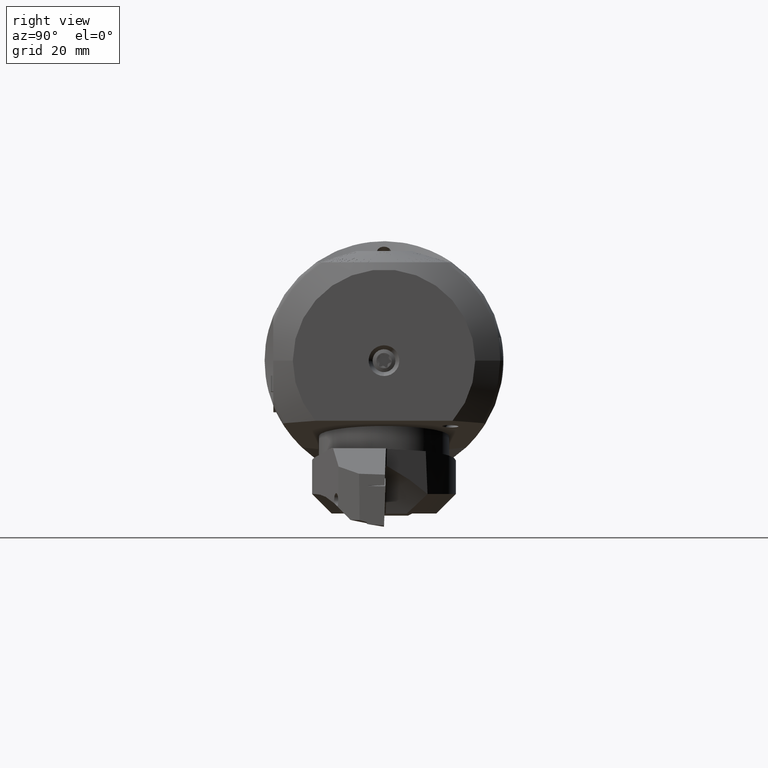
[diagram: clean part render]
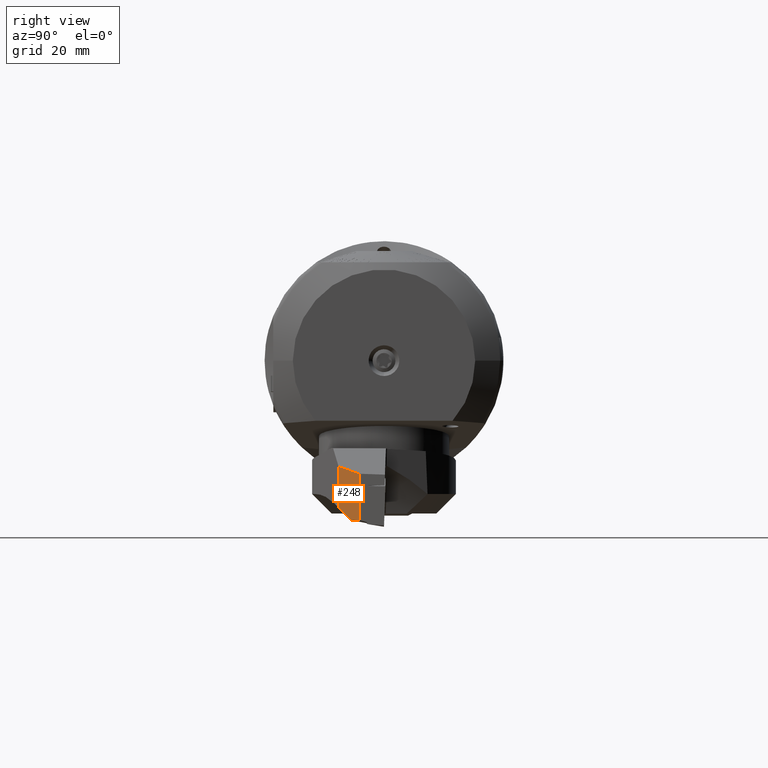
[diagram: same view with one face highlighted and labeled with its STEP entity id]
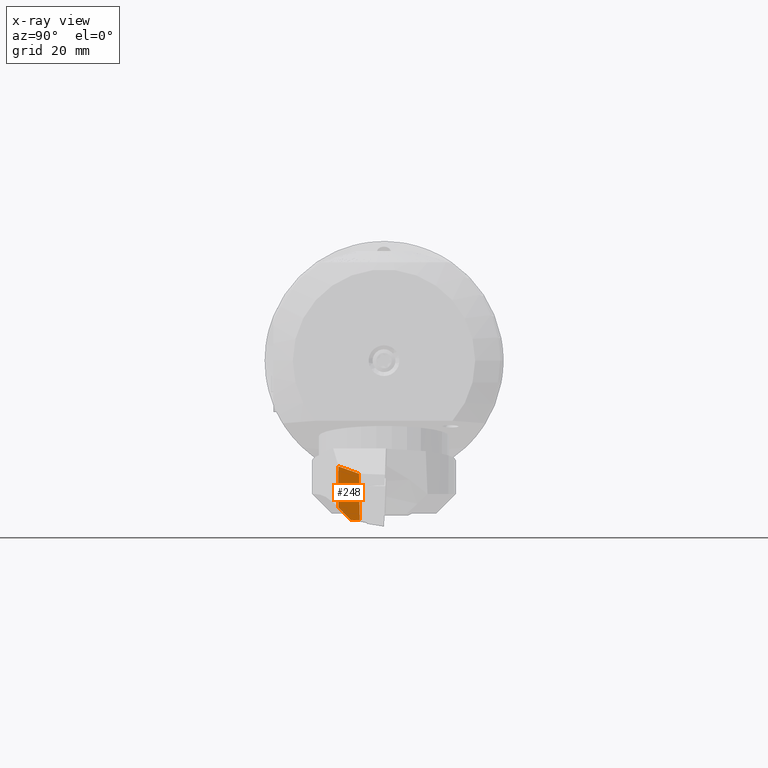
[diagram: x-ray of the same camera — body ghosted, the highlighted face saturated]
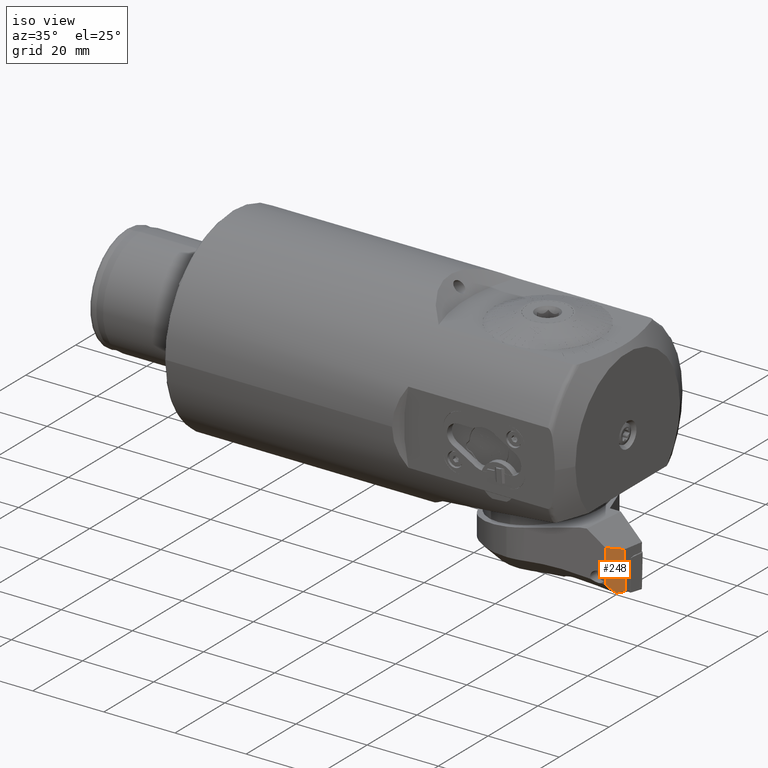
[diagram: same view with one face highlighted and labeled with its STEP entity id]
A machine part, right view. The second image highlights one B-rep face of the part: STEP entity #248.
The next image is the same camera in x-ray: the body ghosted, the highlighted face saturated — about 0% of this face is hidden behind the body in this view.
A second angle (iso view) of the same face is appended — the face is thin or edge-on in the first view.
In plain terms, the highlighted planar face has unit normal (-0.9138, 0.4062, 0).
Its self-contained STEP definition (entity closure, byte-faithful):
#248 = ADVANCED_FACE ( 'NONE', ( #35068 ), #19821, .F. ) ;
#584 = CARTESIAN_POINT ( 'NONE',  ( -9.603907633448271100, 23.95574967250997700, -9.543223649561383600 ) ) ;
#1660 = B_SPLINE_CURVE_WITH_KNOTS ( 'NONE', 3,
 ( #21396, #584, #24526, #6575 ),
 .UNSPECIFIED., .F., .F.,
 ( 4, 4 ),
 ( 0.004623077013931116400, 0.008754649610512706100 ),
 .UNSPECIFIED. ) ;
#1903 = ORIENTED_EDGE ( 'NONE', *, *, #37409, .T. ) ;
#3584 = CARTESIAN_POINT ( 'NONE',  ( 0.8221887790879622800, 23.54585331897428100, -10.46529087054007900 ) ) ;
#3947 = CARTESIAN_POINT ( 'NONE',  ( -12.99999999999999800, 23.54585331897426700, -10.46529087054007900 ) ) ;
#6033 = LINE ( 'NONE', #15322, #29086 ) ;
#6575 = CARTESIAN_POINT ( 'NONE',  ( -11.48350536810327500, 24.77361780301224700, -7.703418567827255500 ) ) ;
#6605 = VERTEX_POINT ( 'NONE', #38492 ) ;
#6722 = EDGE_CURVE ( 'NONE', #18833, #6605, #6033, .T. ) ;
#8013 = AXIS2_PLACEMENT_3D ( 'NONE', #37270, #38604, #29013 ) ;
#8690 = VECTOR ( 'NONE', #30826, 1000.000000000000000 ) ;
#9914 = EDGE_LOOP ( 'NONE', ( #17450, #16869, #32334, #24781, #1903 ) ) ;
#11503 = EDGE_CURVE ( 'NONE', #28052, #18833, #19328, .T. ) ;
#12299 = DIRECTION ( 'NONE',  ( 0.01160003500032031300, -0.4061845368102482400, -0.9137174405932259000 ) ) ;
#15019 = EDGE_CURVE ( 'NONE', #38915, #28052, #21032, .T. ) ;
#15322 = CARTESIAN_POINT ( 'NONE',  ( -11.40919090369141400, 22.17143717988468800, -13.55705799387994800 ) ) ;
#16690 = LINE ( 'NONE', #3947, #8690 ) ;
#16869 = ORIENTED_EDGE ( 'NONE', *, *, #11503, .F. ) ;
#17318 = DIRECTION ( 'NONE',  ( -0.9998938575726941100, 0.005918349228319508100, 0.01331340417807005100 ) ) ;
#17450 = ORIENTED_EDGE ( 'NONE', *, *, #6722, .F. ) ;
#18359 = VECTOR ( 'NONE', #17318, 1000.000000000000100 ) ;
#18770 = CARTESIAN_POINT ( 'NONE',  ( -8.666660680481671300, 23.54585331896071000, -10.46529087054396700 ) ) ;
#18833 = VERTEX_POINT ( 'NONE', #27356 ) ;
#19328 = LINE ( 'NONE', #20441, #18359 ) ;
#19697 = CARTESIAN_POINT ( 'NONE',  ( 3.655449610129098300, 19.97832058061304700, -18.49050253548029600 ) ) ;
#19821 = PLANE ( 'NONE',  #8013 ) ;
#20123 = VECTOR ( 'NONE', #22698, 1000.000000000000100 ) ;
#20441 = CARTESIAN_POINT ( 'NONE',  ( -17.00770428462875800, 25.73679684763549200, -5.536734679766545300 ) ) ;
#21032 = LINE ( 'NONE', #19697, #20123 ) ;
#21396 = CARTESIAN_POINT ( 'NONE',  ( -8.666660680481671300, 23.54585331896071000, -10.46529087054396700 ) ) ;
#22698 = DIRECTION ( 'NONE',  ( -0.3070238402844636100, 0.3865925754776733900, 0.8696450667269489700 ) ) ;
#24429 = VERTEX_POINT ( 'NONE', #18770 ) ;
#24526 = CARTESIAN_POINT ( 'NONE',  ( -10.54293347205611500, 24.36497523519332000, -8.622665381399080800 ) ) ;
#24781 = ORIENTED_EDGE ( 'NONE', *, *, #28604, .F. ) ;
#27356 = CARTESIAN_POINT ( 'NONE',  ( -11.51008304665741200, 25.70425655131810700, -5.609934502932511600 ) ) ;
#28052 = VERTEX_POINT ( 'NONE', #31137 ) ;
#28604 = EDGE_CURVE ( 'NONE', #24429, #38915, #16690, .T. ) ;
#29013 = DIRECTION ( 'NONE',  ( -6.938893903917816400E-018, -0.4062118678290916300, -0.9137789220784207100 ) ) ;
#29086 = VECTOR ( 'NONE', #12299, 1000.000000000000100 ) ;
#30826 = DIRECTION ( 'NONE',  ( 1.000000000000000000, 3.672756627175934100E-018, -6.938893903908937100E-018 ) ) ;
#31137 = CARTESIAN_POINT ( 'NONE',  ( -0.8418218849023418900, 25.64111135371937800, -5.751980452758064500 ) ) ;
#32334 = ORIENTED_EDGE ( 'NONE', *, *, #15019, .F. ) ;
#35068 = FACE_OUTER_BOUND ( 'NONE', #9914, .T. ) ;
#37270 = CARTESIAN_POINT ( 'NONE',  ( -12.28753449521306100, 22.16729808325279200, -13.56636894601652800 ) ) ;
#37409 = EDGE_CURVE ( 'NONE', #24429, #6605, #1660, .T. ) ;
#38492 = CARTESIAN_POINT ( 'NONE',  ( -11.48350536810327500, 24.77361780301224700, -7.703418567827255500 ) ) ;
#38604 = DIRECTION ( 'NONE',  ( -1.214306433186560000E-017, -0.9137789220784208200, 0.4062118678290916900 ) ) ;
#38915 = VERTEX_POINT ( 'NONE', #3584 ) ;